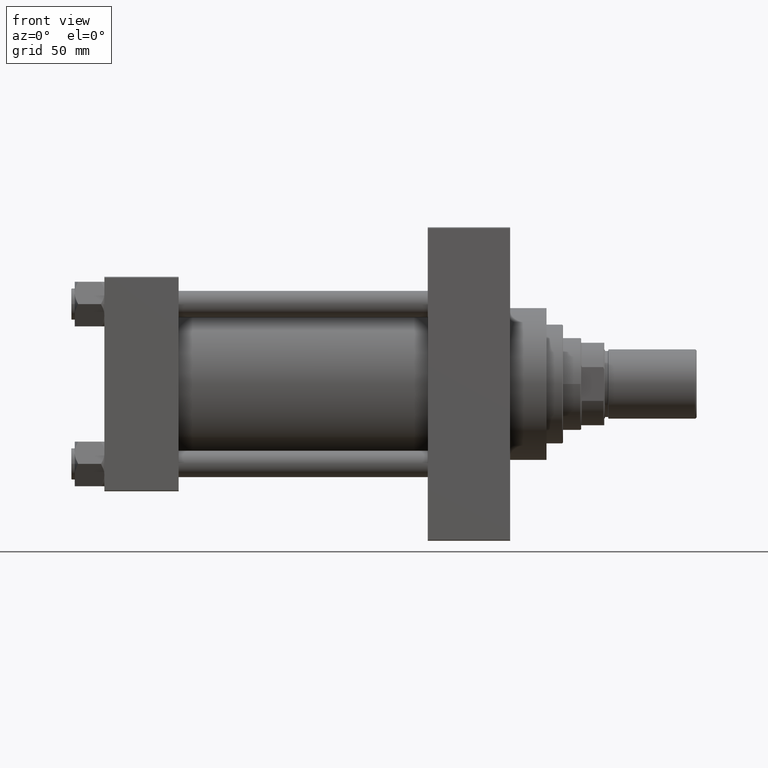
[diagram: clean part render]
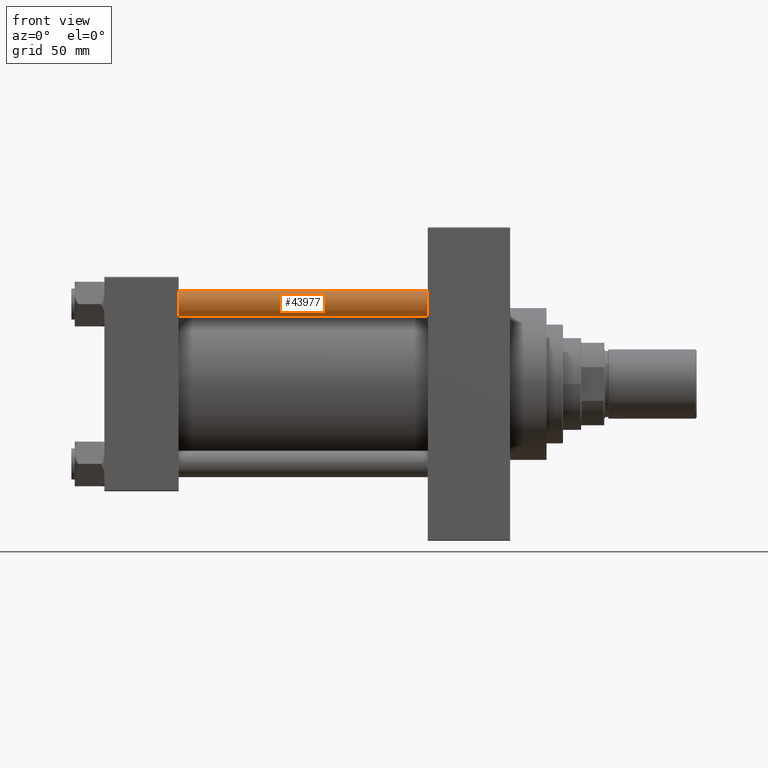
[diagram: same view with one face highlighted and labeled with its STEP entity id]
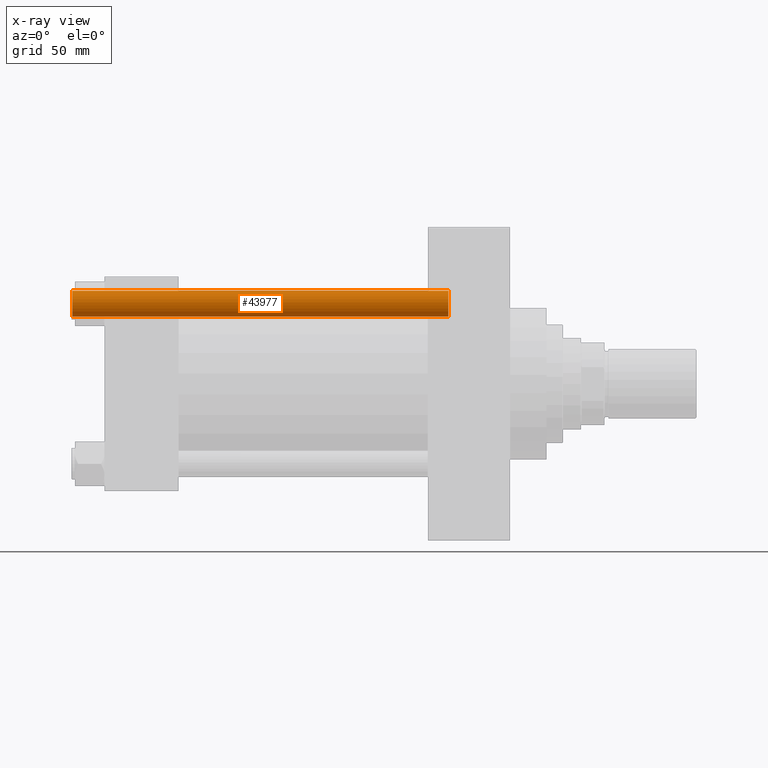
[diagram: x-ray of the same camera — body ghosted, the highlighted face saturated]
A machine part, front view. The second image highlights one B-rep face of the part: STEP entity #43977.
The next image is the same camera in x-ray: the body ghosted, the highlighted face saturated — about 0% of this face is hidden behind the body in this view.
In plain terms, the highlighted cylindrical surface (edge-blend (fillet) strip) has radius 8 mm, axis along (1, 0, 0).
Its self-contained STEP definition (entity closure, byte-faithful):
#1907 = CARTESIAN_POINT ( 'NONE',  ( 8.000000000000000000, 9.797174393178823685E-16, 229.0000000000000000 ) ) ;
#5572 = LINE ( 'NONE', #42784, #45109 ) ;
#5911 = CARTESIAN_POINT ( 'NONE',  ( 8.000000000000000000, 9.797174393178823685E-16, 0.5000000000001392220 ) ) ;
#6895 = EDGE_CURVE ( 'NONE', #21291, #14211, #48030, .T. ) ;
#7844 = DIRECTION ( 'NONE',  ( 1.000000000000000000, 0.000000000000000000, 0.000000000000000000 ) ) ;
#7952 = DIRECTION ( 'NONE',  ( -1.000000000000000000, 0.000000000000000000, 0.000000000000000000 ) ) ;
#9980 = DIRECTION ( 'NONE',  ( -0.000000000000000000, -0.000000000000000000, -1.000000000000000000 ) ) ;
#11132 = ORIENTED_EDGE ( 'NONE', *, *, #6895, .T. ) ;
#13303 = EDGE_CURVE ( 'NONE', #38536, #18820, #34330, .T. ) ;
#13658 = DIRECTION ( 'NONE',  ( -0.000000000000000000, -0.000000000000000000, -1.000000000000000000 ) ) ;
#14076 = ORIENTED_EDGE ( 'NONE', *, *, #37738, .F. ) ;
#14211 = VERTEX_POINT ( 'NONE', #28927 ) ;
#16016 = CARTESIAN_POINT ( 'NONE',  ( 0.000000000000000000, 0.000000000000000000, 229.0000000000000000 ) ) ;
#18820 = VERTEX_POINT ( 'NONE', #35158 ) ;
#20847 = VECTOR ( 'NONE', #9980, 1000.000000000000000 ) ;
#21291 = VERTEX_POINT ( 'NONE', #38497 ) ;
#25908 = DIRECTION ( 'NONE',  ( 0.000000000000000000, 0.000000000000000000, -1.000000000000000000 ) ) ;
#26153 = AXIS2_PLACEMENT_3D ( 'NONE', #47708, #25908, #44758 ) ;
#26441 = CARTESIAN_POINT ( 'NONE',  ( 0.000000000000000000, 0.000000000000000000, 0.5000000000001392220 ) ) ;
#26548 = FACE_OUTER_BOUND ( 'NONE', #33185, .T. ) ;
#28927 = CARTESIAN_POINT ( 'NONE',  ( 8.000000000000000000, 9.797174393178823685E-16, 228.5000000000000853 ) ) ;
#32807 = AXIS2_PLACEMENT_3D ( 'NONE', #16016, #41493, #7952 ) ;
#33185 = EDGE_LOOP ( 'NONE', ( #11132, #37823, #35435, #14076 ) ) ;
#34330 = CIRCLE ( 'NONE', #44510, 8.000000000000000000 ) ;
#35158 = CARTESIAN_POINT ( 'NONE',  ( -8.000000000000000000, 0.000000000000000000, 0.5000000000001392220 ) ) ;
#35435 = ORIENTED_EDGE ( 'NONE', *, *, #13303, .T. ) ;
#37738 = EDGE_CURVE ( 'NONE', #21291, #18820, #5572, .T. ) ;
#37744 = EDGE_CURVE ( 'NONE', #14211, #38536, #43511, .T. ) ;
#37823 = ORIENTED_EDGE ( 'NONE', *, *, #37744, .T. ) ;
#38307 = CYLINDRICAL_SURFACE ( 'NONE', #32807, 8.000000000000000000 ) ;
#38497 = CARTESIAN_POINT ( 'NONE',  ( -8.000000000000000000, 0.000000000000000000, 228.5000000000000853 ) ) ;
#38536 = VERTEX_POINT ( 'NONE', #5911 ) ;
#41385 = DIRECTION ( 'NONE',  ( -0.000000000000000000, -0.000000000000000000, 1.000000000000000000 ) ) ;
#41493 = DIRECTION ( 'NONE',  ( -0.000000000000000000, -0.000000000000000000, -1.000000000000000000 ) ) ;
#42784 = CARTESIAN_POINT ( 'NONE',  ( -8.000000000000000000, 0.000000000000000000, 229.0000000000000000 ) ) ;
#43511 = LINE ( 'NONE', #1907, #20847 ) ;
#43977 = ADVANCED_FACE ( 'NONE', ( #26548 ), #38307, .T. ) ;
#44510 = AXIS2_PLACEMENT_3D ( 'NONE', #26441, #41385, #7844 ) ;
#44758 = DIRECTION ( 'NONE',  ( 1.000000000000000000, 0.000000000000000000, 0.000000000000000000 ) ) ;
#45109 = VECTOR ( 'NONE', #13658, 1000.000000000000000 ) ;
#47708 = CARTESIAN_POINT ( 'NONE',  ( 0.000000000000000000, 0.000000000000000000, 228.5000000000000853 ) ) ;
#48030 = CIRCLE ( 'NONE', #26153, 8.000000000000000000 ) ;